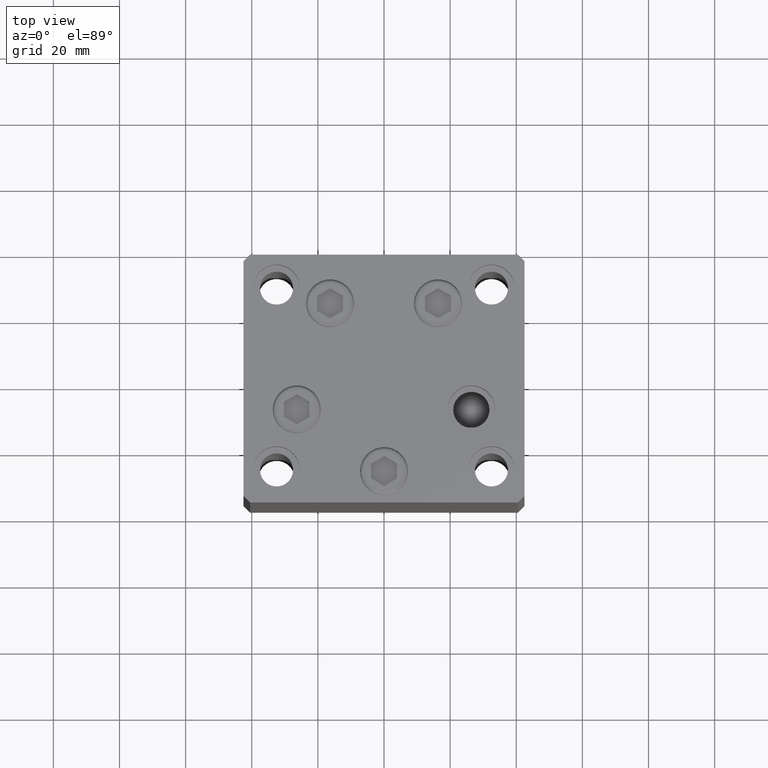
[diagram: clean part render]
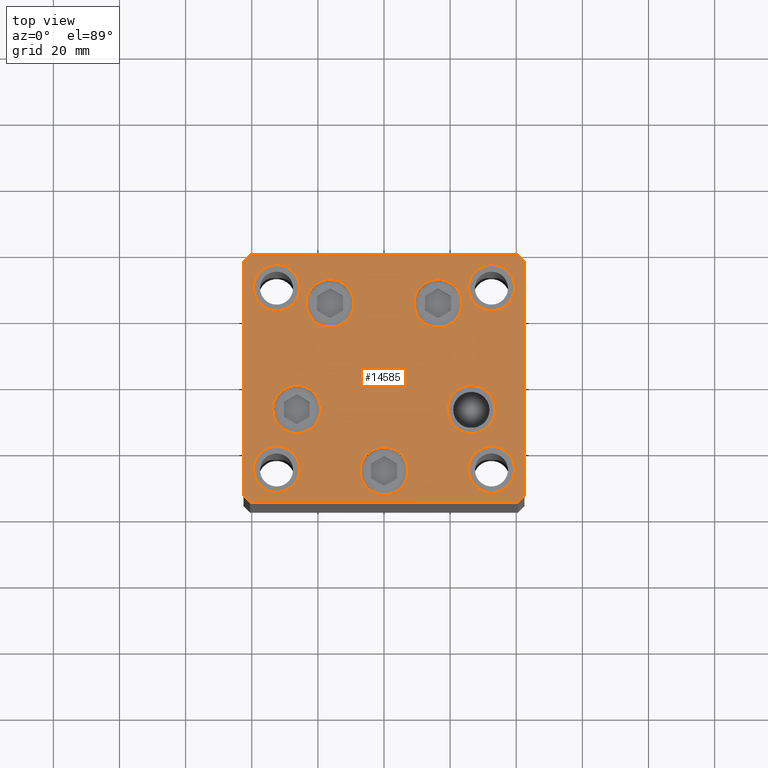
[diagram: same view with one face highlighted and labeled with its STEP entity id]
A machine part, top view. The second image highlights one B-rep face of the part: STEP entity #14585.
In plain terms, the highlighted planar face has unit normal (0, 0, 1).
Its self-contained STEP definition (entity closure, byte-faithful):
#54 = AXIS2_PLACEMENT_3D ( 'NONE', #44901, #14003, #29197 ) ;
#206 = CARTESIAN_POINT ( 'NONE',  ( -25.50000000000000355, -27.49999999999999645, 0.000000000000000000 ) ) ;
#362 = DIRECTION ( 'NONE',  ( 0.7071067811865474617, 0.7071067811865474617, 0.000000000000000000 ) ) ;
#451 = VERTEX_POINT ( 'NONE', #31215 ) ;
#526 = DIRECTION ( 'NONE',  ( 0.000000000000000000, -0.000000000000000000, -1.000000000000000000 ) ) ;
#688 = EDGE_LOOP ( 'NONE', ( #10463, #42766 ) ) ;
#757 = VECTOR ( 'NONE', #9331, 1000.000000000000000 ) ;
#1014 = DIRECTION ( 'NONE',  ( 1.000000000000000000, 0.000000000000000000, 0.000000000000000000 ) ) ;
#1050 = VERTEX_POINT ( 'NONE', #30373 ) ;
#1141 = LINE ( 'NONE', #36224, #8946 ) ;
#1207 = ORIENTED_EDGE ( 'NONE', *, *, #15986, .T. ) ;
#1386 = LINE ( 'NONE', #23814, #757 ) ;
#1503 = AXIS2_PLACEMENT_3D ( 'NONE', #38619, #526, #1014 ) ;
#1658 = VERTEX_POINT ( 'NONE', #11792 ) ;
#1800 = VERTEX_POINT ( 'NONE', #7702 ) ;
#2196 = FACE_BOUND ( 'NONE', #29317, .T. ) ;
#2263 = CARTESIAN_POINT ( 'NONE',  ( -26.39865316429776954, -9.333333333333337478, 0.000000000000000000 ) ) ;
#2327 = AXIS2_PLACEMENT_3D ( 'NONE', #4749, #48252, #40528 ) ;
#2681 = DIRECTION ( 'NONE',  ( -0.7071067811865463515, -0.7071067811865487940, 0.000000000000000000 ) ) ;
#2736 = CIRCLE ( 'NONE', #15454, 7.249999999999999112 ) ;
#2940 = FACE_BOUND ( 'NONE', #29047, .T. ) ;
#3033 = ORIENTED_EDGE ( 'NONE', *, *, #34506, .T. ) ;
#3758 = EDGE_CURVE ( 'NONE', #6375, #28157, #16507, .T. ) ;
#4276 = DIRECTION ( 'NONE',  ( 1.000000000000000000, 0.000000000000000000, 0.000000000000000000 ) ) ;
#4331 = ORIENTED_EDGE ( 'NONE', *, *, #14659, .F. ) ;
#4375 = DIRECTION ( 'NONE',  ( 1.000000000000000000, 0.000000000000000000, 0.000000000000000000 ) ) ;
#4399 = CIRCLE ( 'NONE', #29069, 7.249999999999999112 ) ;
#4532 = AXIS2_PLACEMENT_3D ( 'NONE', #17312, #36491, #43233 ) ;
#4749 = CARTESIAN_POINT ( 'NONE',  ( 32.50000000000000000, 27.49999999999999645, 0.000000000000000000 ) ) ;
#5902 = CARTESIAN_POINT ( 'NONE',  ( 25.50000000000000355, -27.49999999999999645, 0.000000000000000000 ) ) ;
#6375 = VERTEX_POINT ( 'NONE', #20661 ) ;
#6673 = FACE_BOUND ( 'NONE', #17585, .T. ) ;
#7013 = VECTOR ( 'NONE', #362, 1000.000000000000114 ) ;
#7286 = ORIENTED_EDGE ( 'NONE', *, *, #13859, .T. ) ;
#7294 = VECTOR ( 'NONE', #19257, 1000.000000000000000 ) ;
#7342 = VERTEX_POINT ( 'NONE', #40518 ) ;
#7655 = DIRECTION ( 'NONE',  ( 0.000000000000000000, -0.000000000000000000, -1.000000000000000000 ) ) ;
#7702 = CARTESIAN_POINT ( 'NONE',  ( -42.50000000000000711, 35.49999999999997158, 0.000000000000000000 ) ) ;
#8137 = CARTESIAN_POINT ( 'NONE',  ( 25.50000000000000355, 27.49999999999999645, 0.000000000000000000 ) ) ;
#8240 = VERTEX_POINT ( 'NONE', #5902 ) ;
#8441 = CARTESIAN_POINT ( 'NONE',  ( -19.14865316429777309, -9.333333333333335702, 0.000000000000000000 ) ) ;
#8580 = CIRCLE ( 'NONE', #13336, 7.250000000000000000 ) ;
#8581 = EDGE_CURVE ( 'NONE', #14257, #36125, #32318, .T. ) ;
#8829 = VERTEX_POINT ( 'NONE', #8137 ) ;
#8946 = VECTOR ( 'NONE', #28493, 1000.000000000000114 ) ;
#8980 = VECTOR ( 'NONE', #2681, 1000.000000000000000 ) ;
#9130 = VERTEX_POINT ( 'NONE', #28644 ) ;
#9215 = ORIENTED_EDGE ( 'NONE', *, *, #11539, .T. ) ;
#9331 = DIRECTION ( 'NONE',  ( 0.7071067811865463515, -0.7071067811865487940, 0.000000000000000000 ) ) ;
#9354 = CIRCLE ( 'NONE', #25247, 7.249999999999999112 ) ;
#9476 = DIRECTION ( 'NONE',  ( 0.000000000000000000, -0.000000000000000000, -1.000000000000000000 ) ) ;
#9619 = DIRECTION ( 'NONE',  ( 0.000000000000000000, 0.000000000000000000, 1.000000000000000000 ) ) ;
#10463 = ORIENTED_EDGE ( 'NONE', *, *, #27244, .T. ) ;
#10660 = FACE_BOUND ( 'NONE', #688, .T. ) ;
#11041 = CARTESIAN_POINT ( 'NONE',  ( -40.49999999999999289, -37.50000000000002132, 0.000000000000000000 ) ) ;
#11107 = ORIENTED_EDGE ( 'NONE', *, *, #40585, .T. ) ;
#11142 = VECTOR ( 'NONE', #16634, 1000.000000000000000 ) ;
#11539 = EDGE_CURVE ( 'NONE', #31497, #9130, #1386, .T. ) ;
#11792 = CARTESIAN_POINT ( 'NONE',  ( 33.64865316429776954, -9.333333333333328596, 0.000000000000000000 ) ) ;
#11881 = EDGE_CURVE ( 'NONE', #29687, #451, #17452, .T. ) ;
#12041 = AXIS2_PLACEMENT_3D ( 'NONE', #31495, #23776, #39449 ) ;
#12216 = VECTOR ( 'NONE', #27958, 1000.000000000000000 ) ;
#12773 = CARTESIAN_POINT ( 'NONE',  ( 42.50000000000000711, -35.50000000000000000, 0.000000000000000000 ) ) ;
#12978 = DIRECTION ( 'NONE',  ( 1.000000000000000000, 0.000000000000000000, 0.000000000000000000 ) ) ;
#13336 = AXIS2_PLACEMENT_3D ( 'NONE', #47107, #9476, #12978 ) ;
#13349 = EDGE_LOOP ( 'NONE', ( #3033, #1207 ) ) ;
#13438 = CARTESIAN_POINT ( 'NONE',  ( 39.50000000000000000, 27.49999999999999645, 0.000000000000000000 ) ) ;
#13508 = AXIS2_PLACEMENT_3D ( 'NONE', #29986, #26260, #37721 ) ;
#13521 = ORIENTED_EDGE ( 'NONE', *, *, #18983, .F. ) ;
#13566 = CIRCLE ( 'NONE', #41441, 6.999999999999999112 ) ;
#13742 = CIRCLE ( 'NONE', #40788, 6.999999999999999112 ) ;
#13761 = CARTESIAN_POINT ( 'NONE',  ( -40.50000000000000711, 37.49999999999997868, 0.000000000000000000 ) ) ;
#13859 = EDGE_CURVE ( 'NONE', #16654, #46687, #35020, .T. ) ;
#14003 = DIRECTION ( 'NONE',  ( 0.000000000000000000, -0.000000000000000000, -1.000000000000000000 ) ) ;
#14237 = CARTESIAN_POINT ( 'NONE',  ( 26.39865316429776954, -9.333333333333330373, 0.000000000000000000 ) ) ;
#14257 = VERTEX_POINT ( 'NONE', #18200 ) ;
#14259 = VERTEX_POINT ( 'NONE', #25662 ) ;
#14399 = DIRECTION ( 'NONE',  ( -0.000000000000000000, 0.000000000000000000, 1.000000000000000000 ) ) ;
#14585 = ADVANCED_FACE ( 'NONE', ( #33079, #6673, #10660, #21886, #22129, #37071, #2940, #2196, #18138, #17373 ), #33333, .T. ) ;
#14659 = EDGE_CURVE ( 'NONE', #8829, #28479, #33504, .T. ) ;
#14946 = ORIENTED_EDGE ( 'NONE', *, *, #35015, .T. ) ;
#15218 = EDGE_LOOP ( 'NONE', ( #35632, #23601 ) ) ;
#15281 = EDGE_CURVE ( 'NONE', #45097, #15543, #13566, .T. ) ;
#15454 = AXIS2_PLACEMENT_3D ( 'NONE', #14237, #36657, #17729 ) ;
#15543 = VERTEX_POINT ( 'NONE', #206 ) ;
#15986 = EDGE_CURVE ( 'NONE', #31956, #37133, #28745, .T. ) ;
#16027 = EDGE_CURVE ( 'NONE', #9130, #6375, #49145, .T. ) ;
#16100 = CIRCLE ( 'NONE', #35193, 7.249999999999999112 ) ;
#16463 = CARTESIAN_POINT ( 'NONE',  ( 32.50000000000000000, -27.49999999999999645, 0.000000000000000000 ) ) ;
#16507 = LINE ( 'NONE', #45694, #7013 ) ;
#16634 = DIRECTION ( 'NONE',  ( -1.000000000000000000, -3.426614273534436165E-16, 0.000000000000000000 ) ) ;
#16654 = VERTEX_POINT ( 'NONE', #28444 ) ;
#16794 = EDGE_LOOP ( 'NONE', ( #46786, #17839 ) ) ;
#17312 = CARTESIAN_POINT ( 'NONE',  ( 32.50000000000000000, -27.49999999999999645, 0.000000000000000000 ) ) ;
#17373 = FACE_OUTER_BOUND ( 'NONE', #27843, .T. ) ;
#17452 = CIRCLE ( 'NONE', #23827, 7.249999999999999112 ) ;
#17585 = EDGE_LOOP ( 'NONE', ( #7286, #11107 ) ) ;
#17729 = DIRECTION ( 'NONE',  ( 1.000000000000000000, 0.000000000000000000, 0.000000000000000000 ) ) ;
#17839 = ORIENTED_EDGE ( 'NONE', *, *, #11881, .T. ) ;
#18083 = EDGE_CURVE ( 'NONE', #41839, #7342, #16100, .T. ) ;
#18138 = FACE_BOUND ( 'NONE', #46370, .T. ) ;
#18156 = ORIENTED_EDGE ( 'NONE', *, *, #42661, .T. ) ;
#18200 = CARTESIAN_POINT ( 'NONE',  ( 40.49999999999991473, 37.50000000000000711, 0.000000000000000000 ) ) ;
#18302 = ORIENTED_EDGE ( 'NONE', *, *, #3758, .T. ) ;
#18941 = DIRECTION ( 'NONE',  ( 1.000000000000000000, 0.000000000000000000, 0.000000000000000000 ) ) ;
#18983 = EDGE_CURVE ( 'NONE', #15543, #45097, #13742, .T. ) ;
#19032 = ORIENTED_EDGE ( 'NONE', *, *, #18083, .T. ) ;
#19257 = DIRECTION ( 'NONE',  ( 1.000000000000000000, 1.713307136767217096E-16, 0.000000000000000000 ) ) ;
#19579 = EDGE_CURVE ( 'NONE', #43913, #14257, #1141, .T. ) ;
#19715 = CARTESIAN_POINT ( 'NONE',  ( -32.50000000000000000, 27.50000000000000355, 0.000000000000000000 ) ) ;
#20398 = EDGE_CURVE ( 'NONE', #36125, #1800, #45508, .T. ) ;
#20661 = CARTESIAN_POINT ( 'NONE',  ( 40.50000000000000000, -37.50000000000000711, 0.000000000000000000 ) ) ;
#21046 = EDGE_CURVE ( 'NONE', #28157, #43913, #24716, .T. ) ;
#21331 = DIRECTION ( 'NONE',  ( 1.000000000000000000, 0.000000000000000000, 0.000000000000000000 ) ) ;
#21684 = DIRECTION ( 'NONE',  ( 0.000000000000000000, -0.000000000000000000, -1.000000000000000000 ) ) ;
#21886 = FACE_BOUND ( 'NONE', #13349, .T. ) ;
#22129 = FACE_BOUND ( 'NONE', #16794, .T. ) ;
#22915 = ORIENTED_EDGE ( 'NONE', *, *, #16027, .T. ) ;
#23154 = ORIENTED_EDGE ( 'NONE', *, *, #23198, .F. ) ;
#23198 = EDGE_CURVE ( 'NONE', #14259, #31097, #45697, .T. ) ;
#23212 = CARTESIAN_POINT ( 'NONE',  ( 42.49999999999992895, 35.50000000000000000, 0.000000000000000000 ) ) ;
#23301 = EDGE_LOOP ( 'NONE', ( #19032, #18156 ) ) ;
#23601 = ORIENTED_EDGE ( 'NONE', *, *, #32690, .F. ) ;
#23609 = ORIENTED_EDGE ( 'NONE', *, *, #24713, .F. ) ;
#23692 = DIRECTION ( 'NONE',  ( 0.000000000000000000, -0.000000000000000000, -1.000000000000000000 ) ) ;
#23730 = VECTOR ( 'NONE', #46684, 1000.000000000000000 ) ;
#23776 = DIRECTION ( 'NONE',  ( 0.000000000000000000, -0.000000000000000000, -1.000000000000000000 ) ) ;
#23805 = CIRCLE ( 'NONE', #2327, 6.999999999999999112 ) ;
#23814 = CARTESIAN_POINT ( 'NONE',  ( -42.50000000000000000, -35.50000000000000711, 0.000000000000000000 ) ) ;
#23827 = AXIS2_PLACEMENT_3D ( 'NONE', #27654, #21684, #29646 ) ;
#24201 = AXIS2_PLACEMENT_3D ( 'NONE', #37034, #9619, #21331 ) ;
#24395 = CIRCLE ( 'NONE', #37153, 6.999999999999999112 ) ;
#24713 = EDGE_CURVE ( 'NONE', #31097, #14259, #29834, .T. ) ;
#24716 = LINE ( 'NONE', #12773, #12216 ) ;
#25247 = AXIS2_PLACEMENT_3D ( 'NONE', #2263, #7655, #37811 ) ;
#25662 = CARTESIAN_POINT ( 'NONE',  ( -39.50000000000000000, 27.50000000000000355, 0.000000000000000000 ) ) ;
#25740 = AXIS2_PLACEMENT_3D ( 'NONE', #19715, #38138, #35134 ) ;
#26051 = CARTESIAN_POINT ( 'NONE',  ( -16.32291334290543006, 22.74999999999999645, 0.000000000000000000 ) ) ;
#26260 = DIRECTION ( 'NONE',  ( 0.000000000000000000, -0.000000000000000000, -1.000000000000000000 ) ) ;
#26322 = VERTEX_POINT ( 'NONE', #40445 ) ;
#26357 = CARTESIAN_POINT ( 'NONE',  ( -42.50000000000000711, 35.49999999999997158, 0.000000000000000000 ) ) ;
#26409 = DIRECTION ( 'NONE',  ( 0.000000000000000000, 0.000000000000000000, 1.000000000000000000 ) ) ;
#26645 = CARTESIAN_POINT ( 'NONE',  ( -42.50000000000000000, -35.50000000000000711, 0.000000000000000000 ) ) ;
#27037 = CARTESIAN_POINT ( 'NONE',  ( -32.50000000000000000, -27.49999999999999645, 0.000000000000000000 ) ) ;
#27244 = EDGE_CURVE ( 'NONE', #1050, #1658, #2736, .T. ) ;
#27654 = CARTESIAN_POINT ( 'NONE',  ( -26.39865316429776954, -9.333333333333337478, 0.000000000000000000 ) ) ;
#27843 = EDGE_LOOP ( 'NONE', ( #9215, #22915, #18302, #31187, #39863, #48999, #35407, #14946 ) ) ;
#27958 = DIRECTION ( 'NONE',  ( -1.172770800660376741E-15, 1.000000000000000000, 0.000000000000000000 ) ) ;
#28157 = VERTEX_POINT ( 'NONE', #31468 ) ;
#28162 = DIRECTION ( 'NONE',  ( 1.000000000000000000, 0.000000000000000000, 0.000000000000000000 ) ) ;
#28444 = CARTESIAN_POINT ( 'NONE',  ( 9.072913342905424727, 22.75000000000000000, 0.000000000000000000 ) ) ;
#28479 = VERTEX_POINT ( 'NONE', #13438 ) ;
#28493 = DIRECTION ( 'NONE',  ( -0.7071067811865474617, 0.7071067811865474617, 0.000000000000000000 ) ) ;
#28644 = CARTESIAN_POINT ( 'NONE',  ( -40.49999999999999289, -37.50000000000002132, 0.000000000000000000 ) ) ;
#28745 = CIRCLE ( 'NONE', #12041, 7.250000000000000000 ) ;
#29047 = EDGE_LOOP ( 'NONE', ( #13521, #34396 ) ) ;
#29069 = AXIS2_PLACEMENT_3D ( 'NONE', #31653, #23692, #4276 ) ;
#29197 = DIRECTION ( 'NONE',  ( 1.000000000000000000, 0.000000000000000000, 0.000000000000000000 ) ) ;
#29317 = EDGE_LOOP ( 'NONE', ( #23609, #23154 ) ) ;
#29448 = EDGE_CURVE ( 'NONE', #1658, #1050, #4399, .T. ) ;
#29646 = DIRECTION ( 'NONE',  ( 1.000000000000000000, 0.000000000000000000, 0.000000000000000000 ) ) ;
#29687 = VERTEX_POINT ( 'NONE', #8441 ) ;
#29818 = CARTESIAN_POINT ( 'NONE',  ( -40.50000000000000711, 37.49999999999997868, 0.000000000000000000 ) ) ;
#29834 = CIRCLE ( 'NONE', #25740, 6.999999999999999112 ) ;
#29986 = CARTESIAN_POINT ( 'NONE',  ( -16.32291334290543006, 22.74999999999999645, 0.000000000000000000 ) ) ;
#30283 = CARTESIAN_POINT ( 'NONE',  ( -23.57291334290543006, 22.74999999999999645, 0.000000000000000000 ) ) ;
#30373 = CARTESIAN_POINT ( 'NONE',  ( 19.14865316429777309, -9.333333333333330373, 0.000000000000000000 ) ) ;
#30814 = DIRECTION ( 'NONE',  ( 1.000000000000000000, 0.000000000000000000, 0.000000000000000000 ) ) ;
#31097 = VERTEX_POINT ( 'NONE', #37059 ) ;
#31187 = ORIENTED_EDGE ( 'NONE', *, *, #21046, .T. ) ;
#31215 = CARTESIAN_POINT ( 'NONE',  ( -33.64865316429776954, -9.333333333333337478, 0.000000000000000000 ) ) ;
#31359 = CARTESIAN_POINT ( 'NONE',  ( 40.49999999999991473, 37.50000000000000711, 0.000000000000000000 ) ) ;
#31468 = CARTESIAN_POINT ( 'NONE',  ( 42.50000000000000711, -35.50000000000000000, 0.000000000000000000 ) ) ;
#31495 = CARTESIAN_POINT ( 'NONE',  ( 3.429011037612589276E-15, -28.00000000000000000, 0.000000000000000000 ) ) ;
#31497 = VERTEX_POINT ( 'NONE', #26645 ) ;
#31653 = CARTESIAN_POINT ( 'NONE',  ( 26.39865316429776954, -9.333333333333330373, 0.000000000000000000 ) ) ;
#31956 = VERTEX_POINT ( 'NONE', #38529 ) ;
#32128 = EDGE_CURVE ( 'NONE', #26322, #8240, #35569, .T. ) ;
#32318 = LINE ( 'NONE', #31359, #11142 ) ;
#32690 = EDGE_CURVE ( 'NONE', #8240, #26322, #24395, .T. ) ;
#32762 = EDGE_CURVE ( 'NONE', #451, #29687, #9354, .T. ) ;
#33079 = FACE_BOUND ( 'NONE', #23301, .T. ) ;
#33333 = PLANE ( 'NONE',  #35096 ) ;
#33363 = CARTESIAN_POINT ( 'NONE',  ( -7.249999999999997335, -28.00000000000000000, 0.000000000000000000 ) ) ;
#33504 = CIRCLE ( 'NONE', #43022, 6.999999999999999112 ) ;
#33838 = LINE ( 'NONE', #26357, #23730 ) ;
#34396 = ORIENTED_EDGE ( 'NONE', *, *, #15281, .F. ) ;
#34506 = EDGE_CURVE ( 'NONE', #37133, #31956, #8580, .T. ) ;
#35015 = EDGE_CURVE ( 'NONE', #1800, #31497, #33838, .T. ) ;
#35020 = CIRCLE ( 'NONE', #54, 7.249999999999999112 ) ;
#35096 = AXIS2_PLACEMENT_3D ( 'NONE', #48527, #14399, #44783 ) ;
#35134 = DIRECTION ( 'NONE',  ( 1.000000000000000000, 0.000000000000000000, 0.000000000000000000 ) ) ;
#35193 = AXIS2_PLACEMENT_3D ( 'NONE', #26051, #41249, #41507 ) ;
#35407 = ORIENTED_EDGE ( 'NONE', *, *, #20398, .T. ) ;
#35411 = CARTESIAN_POINT ( 'NONE',  ( 23.57291334290542295, 22.75000000000000000, 0.000000000000000000 ) ) ;
#35569 = CIRCLE ( 'NONE', #4532, 6.999999999999999112 ) ;
#35632 = ORIENTED_EDGE ( 'NONE', *, *, #32128, .F. ) ;
#36125 = VERTEX_POINT ( 'NONE', #13761 ) ;
#36224 = CARTESIAN_POINT ( 'NONE',  ( 42.49999999999992895, 35.50000000000000000, 0.000000000000000000 ) ) ;
#36491 = DIRECTION ( 'NONE',  ( 0.000000000000000000, 0.000000000000000000, 1.000000000000000000 ) ) ;
#36551 = CARTESIAN_POINT ( 'NONE',  ( -39.50000000000000000, -27.49999999999999645, 0.000000000000000000 ) ) ;
#36657 = DIRECTION ( 'NONE',  ( 0.000000000000000000, -0.000000000000000000, -1.000000000000000000 ) ) ;
#37034 = CARTESIAN_POINT ( 'NONE',  ( -32.50000000000000000, 27.50000000000000355, 0.000000000000000000 ) ) ;
#37059 = CARTESIAN_POINT ( 'NONE',  ( -25.50000000000000355, 27.50000000000000355, 0.000000000000000000 ) ) ;
#37071 = FACE_BOUND ( 'NONE', #15218, .T. ) ;
#37133 = VERTEX_POINT ( 'NONE', #33363 ) ;
#37153 = AXIS2_PLACEMENT_3D ( 'NONE', #16463, #42875, #28162 ) ;
#37721 = DIRECTION ( 'NONE',  ( 1.000000000000000000, 0.000000000000000000, 0.000000000000000000 ) ) ;
#37811 = DIRECTION ( 'NONE',  ( 1.000000000000000000, 0.000000000000000000, 0.000000000000000000 ) ) ;
#38085 = EDGE_CURVE ( 'NONE', #28479, #8829, #23805, .T. ) ;
#38138 = DIRECTION ( 'NONE',  ( 0.000000000000000000, 0.000000000000000000, 1.000000000000000000 ) ) ;
#38195 = CIRCLE ( 'NONE', #13508, 7.249999999999999112 ) ;
#38529 = CARTESIAN_POINT ( 'NONE',  ( 7.250000000000003553, -28.00000000000000000, 0.000000000000000000 ) ) ;
#38619 = CARTESIAN_POINT ( 'NONE',  ( 16.32291334290542295, 22.75000000000000000, 0.000000000000000000 ) ) ;
#39449 = DIRECTION ( 'NONE',  ( 1.000000000000000000, 0.000000000000000000, 0.000000000000000000 ) ) ;
#39863 = ORIENTED_EDGE ( 'NONE', *, *, #19579, .T. ) ;
#40445 = CARTESIAN_POINT ( 'NONE',  ( 39.50000000000000000, -27.49999999999999645, 0.000000000000000000 ) ) ;
#40518 = CARTESIAN_POINT ( 'NONE',  ( -9.072913342905431833, 22.74999999999999645, 0.000000000000000000 ) ) ;
#40528 = DIRECTION ( 'NONE',  ( 1.000000000000000000, 0.000000000000000000, 0.000000000000000000 ) ) ;
#40585 = EDGE_CURVE ( 'NONE', #46687, #16654, #44449, .T. ) ;
#40788 = AXIS2_PLACEMENT_3D ( 'NONE', #27037, #42243, #4375 ) ;
#41249 = DIRECTION ( 'NONE',  ( 0.000000000000000000, -0.000000000000000000, -1.000000000000000000 ) ) ;
#41441 = AXIS2_PLACEMENT_3D ( 'NONE', #45352, #26409, #18941 ) ;
#41507 = DIRECTION ( 'NONE',  ( 1.000000000000000000, 0.000000000000000000, 0.000000000000000000 ) ) ;
#41839 = VERTEX_POINT ( 'NONE', #30283 ) ;
#42243 = DIRECTION ( 'NONE',  ( 0.000000000000000000, 0.000000000000000000, 1.000000000000000000 ) ) ;
#42661 = EDGE_CURVE ( 'NONE', #7342, #41839, #38195, .T. ) ;
#42766 = ORIENTED_EDGE ( 'NONE', *, *, #29448, .T. ) ;
#42875 = DIRECTION ( 'NONE',  ( 0.000000000000000000, 0.000000000000000000, 1.000000000000000000 ) ) ;
#43022 = AXIS2_PLACEMENT_3D ( 'NONE', #45776, #49018, #30814 ) ;
#43233 = DIRECTION ( 'NONE',  ( 1.000000000000000000, 0.000000000000000000, 0.000000000000000000 ) ) ;
#43913 = VERTEX_POINT ( 'NONE', #23212 ) ;
#44449 = CIRCLE ( 'NONE', #1503, 7.249999999999999112 ) ;
#44783 = DIRECTION ( 'NONE',  ( 1.000000000000000000, 0.000000000000000000, 0.000000000000000000 ) ) ;
#44901 = CARTESIAN_POINT ( 'NONE',  ( 16.32291334290542295, 22.75000000000000000, 0.000000000000000000 ) ) ;
#45097 = VERTEX_POINT ( 'NONE', #36551 ) ;
#45166 = ORIENTED_EDGE ( 'NONE', *, *, #38085, .F. ) ;
#45352 = CARTESIAN_POINT ( 'NONE',  ( -32.50000000000000000, -27.49999999999999645, 0.000000000000000000 ) ) ;
#45508 = LINE ( 'NONE', #29818, #8980 ) ;
#45694 = CARTESIAN_POINT ( 'NONE',  ( 40.50000000000000000, -37.50000000000000711, 0.000000000000000000 ) ) ;
#45697 = CIRCLE ( 'NONE', #24201, 6.999999999999999112 ) ;
#45776 = CARTESIAN_POINT ( 'NONE',  ( 32.50000000000000000, 27.49999999999999645, 0.000000000000000000 ) ) ;
#46370 = EDGE_LOOP ( 'NONE', ( #45166, #4331 ) ) ;
#46684 = DIRECTION ( 'NONE',  ( 9.773090005503140331E-17, -1.000000000000000000, 0.000000000000000000 ) ) ;
#46687 = VERTEX_POINT ( 'NONE', #35411 ) ;
#46786 = ORIENTED_EDGE ( 'NONE', *, *, #32762, .T. ) ;
#47107 = CARTESIAN_POINT ( 'NONE',  ( 3.429011037612589276E-15, -28.00000000000000000, 0.000000000000000000 ) ) ;
#48252 = DIRECTION ( 'NONE',  ( 0.000000000000000000, 0.000000000000000000, 1.000000000000000000 ) ) ;
#48527 = CARTESIAN_POINT ( 'NONE',  ( 0.000000000000000000, 0.000000000000000000, 0.000000000000000000 ) ) ;
#48999 = ORIENTED_EDGE ( 'NONE', *, *, #8581, .T. ) ;
#49018 = DIRECTION ( 'NONE',  ( 0.000000000000000000, 0.000000000000000000, 1.000000000000000000 ) ) ;
#49145 = LINE ( 'NONE', #11041, #7294 ) ;